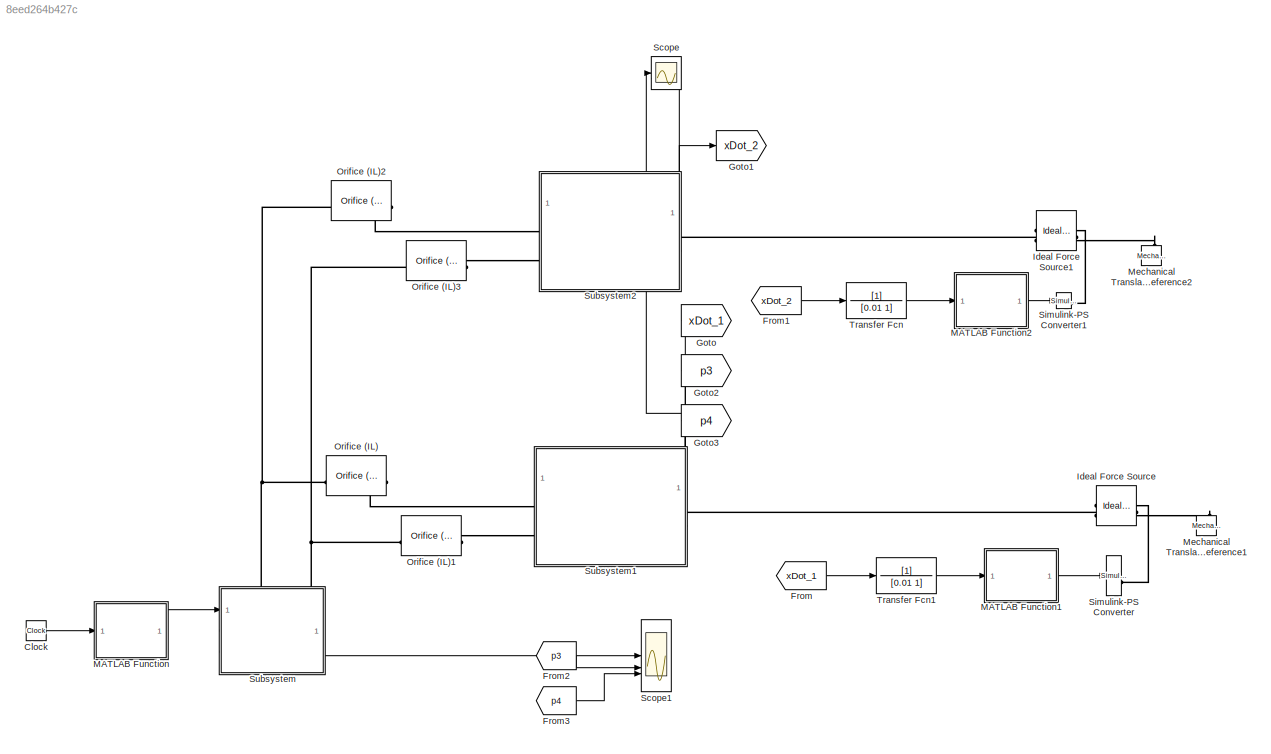
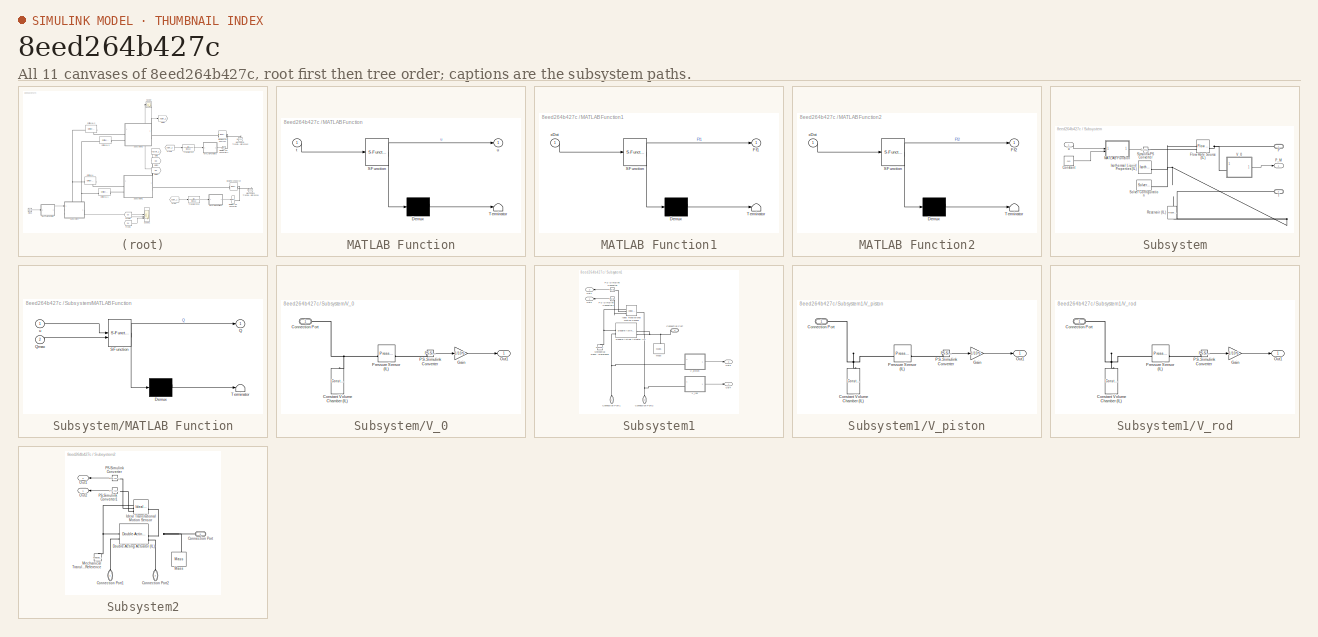
[diagram: thumbnail index - all 11 canvases of the model, root first then tree order]
MODEL slx_8eed264b427c
KIND model
CONFIG AbsTol = auto
CONFIG EnableMultiTasking = off
CONFIG FixedStep = auto
CONFIG MaxStep = auto
CONFIG MinStep = auto
CONFIG RelTol = 1e-3
CONFIG SampleTimeConstraint = Unconstrained
CONFIG SolverName = VariableStepAuto
CONFIG StartTime = 0.0
CONFIG StopTime = 2
WORKSPACE source: MATLAB code (in-file)
WORKSPACE code: clear;
WORKSPACE rho = 875
WORKSPACE beta = 830
WORKSPACE m1 = 3000
WORKSPACE m2 = 5000
WORKSPACE Ff1max = 12000
WORKSPACE Ff2max = 20000
WORKSPACE vf = 0.05
WORKSPACE d = 42
WORKSPACE dr = 30
WORKSPACE A = pi*d^2/4  (= 1385.44236023)
WORKSPACE Ar = pi*dr^2/4  (= 706.858347058)
WORKSPACE Aa = A - Ar  (= 678.584013175)
WORKSPACE L0 = 1600
WORKSPACE x1_Init = 200
WORKSPACE x2_Init = x1_Init  (= 200)
WORKSPACE V0 = 1
WORKSPACE Cd = 0.6
WORKSPACE Ad1 = 9
WORKSPACE Ad2 = 5
WORKSPACE Ad3 = Ad1  (= 9)
WORKSPACE Ad4 = Ad2  (= 5)
WORKSPACE Q0 = 25
WORKSPACE tRamp = 0.25
WORKSPACE tHold = 1
BLOCK [Clock] Clock
BLOCK [From] From
  GotoTag = xDot_1
BLOCK [From] From1
  GotoTag = xDot_2
BLOCK [From] From2
  GotoTag = p3
BLOCK [From] From3
  GotoTag = p4
BLOCK [Goto] Goto
  GotoTag = xDot_1
BLOCK [Goto] Goto1
  GotoTag = xDot_2
BLOCK [Goto] Goto2
  GotoTag = p3
BLOCK [Goto] Goto3
  GotoTag = p4
BLOCK [Reference] Ideal Force Source  REF=fl_lib/Mechanical/Mechanical Sources/Ideal Force Source
  NameLocation = top
  SourceBlock = fl_lib/Mechanical/Mechanical Sources/Ideal Force Source
  SourceType = Ideal Force Source
BLOCK [Reference] Ideal Force Source1  REF=fl_lib/Mechanical/Mechanical Sources/Ideal Force Source
  NameLocation = top
  SourceBlock = fl_lib/Mechanical/Mechanical Sources/Ideal Force Source
  SourceType = Ideal Force Source
BLOCK [SubSystem] MATLAB Function
  ErrorFcn = Stateflow.Translate.translate
  LibrarySourceBlock = simulink/User-Defined\nFunctions/MATLAB Function
  PermitHierarchicalResolution = ExplicitOnly
  SFBlockType = MATLAB Function
  TreatAsAtomicUnit = on
BLOCK [Demux] MATLAB Function/ Demux 
  Outputs = 1
BLOCK [S-Function] MATLAB Function/ SFunction 
  EnableBusSupport = on
  FunctionName = sf_sfun
  Parameters = tHold,tRamp
  PortCounts = [1 2]
  SFcnIsStateOwnerBlock = off
  SFunctionDeploymentMode = off
  Tag = Stateflow S-Function 2
BLOCK [Terminator] MATLAB Function/ Terminator 
BLOCK [Inport] MATLAB Function/t
BLOCK [Outport] MATLAB Function/u
BLOCK [SubSystem] MATLAB Function1
  ErrorFcn = Stateflow.Translate.translate
  LibrarySourceBlock = simulink/User-Defined\nFunctions/MATLAB Function
  PermitHierarchicalResolution = ExplicitOnly
  SFBlockType = MATLAB Function
  TreatAsAtomicUnit = on
BLOCK [Demux] MATLAB Function1/ Demux 
  Outputs = 1
BLOCK [S-Function] MATLAB Function1/ SFunction 
  EnableBusSupport = on
  FunctionName = sf_sfun
  Parameters = Ff1max,vf
  PortCounts = [1 2]
  SFcnIsStateOwnerBlock = off
  SFunctionDeploymentMode = off
  Tag = Stateflow S-Function 1
BLOCK [Terminator] MATLAB Function1/ Terminator 
BLOCK [Outport] MATLAB Function1/Ff1
BLOCK [Inport] MATLAB Function1/xDot
BLOCK [SubSystem] MATLAB Function2
  ErrorFcn = Stateflow.Translate.translate
  LibrarySourceBlock = simulink/User-Defined\nFunctions/MATLAB Function
  PermitHierarchicalResolution = ExplicitOnly
  SFBlockType = MATLAB Function
  TreatAsAtomicUnit = on
BLOCK [Demux] MATLAB Function2/ Demux 
  Outputs = 1
BLOCK [S-Function] MATLAB Function2/ SFunction 
  EnableBusSupport = on
  FunctionName = sf_sfun
  Parameters = Ff2max,vf
  PortCounts = [1 2]
  SFcnIsStateOwnerBlock = off
  SFunctionDeploymentMode = off
  Tag = Stateflow S-Function 4
BLOCK [Terminator] MATLAB Function2/ Terminator 
BLOCK [Outport] MATLAB Function2/Ff2
BLOCK [Inport] MATLAB Function2/xDot
BLOCK [Reference] Mechanical Translational Reference1  REF=fl_lib/Mechanical/Translational
Elements/Mechanical
Translational
Reference
  NameLocation = right
  SourceBlock = fl_lib/Mechanical/Translational\nElements/Mechanical\nTranslational\nReference
  SourceType = Mechanical\nTranslational\nReference
BLOCK [Reference] Mechanical Translational Reference2  REF=fl_lib/Mechanical/Translational
Elements/Mechanical
Translational
Reference
  NameLocation = right
  SourceBlock = fl_lib/Mechanical/Translational\nElements/Mechanical\nTranslational\nReference
  SourceType = Mechanical\nTranslational\nReference
BLOCK [Reference] Orifice (IL)  REF=SimscapeFluids_lib/Isothermal Liquid/Valves & Orifices/Orifices/Orifice (IL)
  SourceBlock = SimscapeFluids_lib/Isothermal Liquid/Valves & Orifices/Orifices/Orifice (IL)
  SourceType = Orifice (IL)
BLOCK [Reference] Orifice (IL)1  REF=SimscapeFluids_lib/Isothermal Liquid/Valves & Orifices/Orifices/Orifice (IL)
  SourceBlock = SimscapeFluids_lib/Isothermal Liquid/Valves & Orifices/Orifices/Orifice (IL)
  SourceType = Orifice (IL)
BLOCK [Reference] Orifice (IL)2  REF=SimscapeFluids_lib/Isothermal Liquid/Valves & Orifices/Orifices/Orifice (IL)
  SourceBlock = SimscapeFluids_lib/Isothermal Liquid/Valves & Orifices/Orifices/Orifice (IL)
  SourceType = Orifice (IL)
BLOCK [Reference] Orifice (IL)3  REF=SimscapeFluids_lib/Isothermal Liquid/Valves & Orifices/Orifices/Orifice (IL)
  SourceBlock = SimscapeFluids_lib/Isothermal Liquid/Valves & Orifices/Orifices/Orifice (IL)
  SourceType = Orifice (IL)
BLOCK [Scope] Scope
  Floating = off
  NumInputPorts = 2
  ScopeSpecificationString = Simulink.scopes.TimeScopeBlockCfg('CurrentConfiguration', extmgr.ConfigurationSet(extmgr.Configuration('Core','General UI',true),extmgr.Configuration('Core','Source UI',true),extmgr.Configuration('Sources','WiredSimulink',true),extmgr.Configuration('Visuals','Time Domain',true,'SerializedDisplays',{struct('MinYLimReal','0.16011','MaxYLimReal','0.55903','YLabelReal','','MinYLimMag','0.16011','MaxYL...<+1635ch>
BLOCK [Scope] Scope1
  Floating = off
  NumInputPorts = 3
  ScopeSpecificationString = Simulink.scopes.TimeScopeBlockCfg('CurrentConfiguration', extmgr.ConfigurationSet(extmgr.Configuration('Core','General UI',true),extmgr.Configuration('Core','Source UI',true),extmgr.Configuration('Sources','WiredSimulink',true,'DataLoggingVariableName','ScopeData1'),extmgr.Configuration('Visuals','Time Domain',true,'SerializedDisplays',{struct('MinYLimReal','-20.80978','MaxYLimReal','187.28803','Y...<+1837ch>
BLOCK [Reference] Simulink-PS Converter  REF=nesl_utility/Simulink-PS
Converter
  NameLocation = top
  SourceBlock = nesl_utility/Simulink-PS\nConverter
  SourceType = Simulink-PS\nConverter
BLOCK [Reference] Simulink-PS Converter1  REF=nesl_utility/Simulink-PS
Converter
  NameLocation = top
  SourceBlock = nesl_utility/Simulink-PS\nConverter
  SourceType = Simulink-PS\nConverter
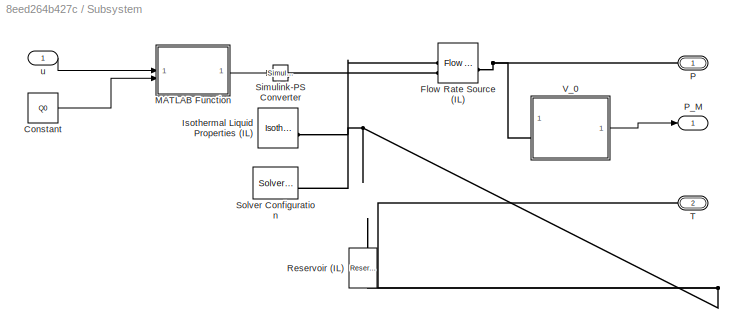
BLOCK [SubSystem] Subsystem
  PortSchema = {"entries":[{"content":{"sides":[{"content":{"connectorIds":["In1"]},"type":"ConnectorPlacement.EquallySpacedRectSide","uuid":"074b696c-c208-4407-b67b-8d54c3be0c3b"},{"content":{"connectorIds":["Out1"],"side":"RIGHT"},"type":"ConnectorPlacement.EquallySpacedRectSide","uuid":"6280edc9-086d-491c-89a7-9b9ec6eba0fd"},{"content":{"connectorIds":["LConn1","LConn2"],"side":"TOP"},"type":"ConnectorPlaceme...<+257ch>
BLOCK [Constant] Subsystem/Constant
  Value = Q0
BLOCK [Reference] Subsystem/Flow Rate Source (IL)  REF=fl_lib/Isothermal Liquid/Sources/Flow Rate Source
(IL)
  SourceBlock = fl_lib/Isothermal Liquid/Sources/Flow Rate Source\n(IL)
  SourceType = Flow Rate Source\n(IL)
BLOCK [Reference] Subsystem/Isothermal Liquid Properties (IL)  REF=fl_lib/Isothermal Liquid/Utilities/Isothermal Liquid
Properties (IL)
  SourceBlock = fl_lib/Isothermal Liquid/Utilities/Isothermal Liquid\nProperties (IL)
  SourceType = Isothermal Liquid\nProperties (IL)
BLOCK [SubSystem] Subsystem/MATLAB Function
  ErrorFcn = Stateflow.Translate.translate
  LibrarySourceBlock = simulink/User-Defined\nFunctions/MATLAB Function
  PermitHierarchicalResolution = ExplicitOnly
  SFBlockType = MATLAB Function
  TreatAsAtomicUnit = on
BLOCK [Demux] Subsystem/MATLAB Function/ Demux 
  Outputs = 1
BLOCK [S-Function] Subsystem/MATLAB Function/ SFunction 
  EnableBusSupport = on
  FunctionName = sf_sfun
  PortCounts = [2 2]
  SFcnIsStateOwnerBlock = off
  SFunctionDeploymentMode = off
  Tag = Stateflow S-Function 3
BLOCK [Terminator] Subsystem/MATLAB Function/ Terminator 
BLOCK [Outport] Subsystem/MATLAB Function/Q
BLOCK [Inport] Subsystem/MATLAB Function/Qmax
  Port = 2
BLOCK [Inport] Subsystem/MATLAB Function/u
BLOCK [PMIOPort] Subsystem/P
  Side = Left
BLOCK [Outport] Subsystem/P_M
BLOCK [Reference] Subsystem/Reservoir (IL)  REF=fl_lib/Isothermal Liquid/Elements/Reservoir (IL)
  NameLocation = right
  SourceBlock = fl_lib/Isothermal Liquid/Elements/Reservoir (IL)
  SourceType = Reservoir (IL)
BLOCK [Reference] Subsystem/Simulink-PS Converter  REF=nesl_utility/Simulink-PS
Converter
  SourceBlock = nesl_utility/Simulink-PS\nConverter
  SourceType = Simulink-PS\nConverter
BLOCK [Reference] Subsystem/Solver Configuration  REF=nesl_utility/Solver
Configuration
  SourceBlock = nesl_utility/Solver\nConfiguration
  SourceType = Solver\nConfiguration
BLOCK [PMIOPort] Subsystem/T
  Port = 2
  Side = Left
BLOCK [SubSystem] Subsystem/V_0
BLOCK [PMIOPort] Subsystem/V_0/Connection Port
  Side = Left
BLOCK [Reference] Subsystem/V_0/Constant Volume Chamber (IL)  REF=fl_lib/Isothermal Liquid/Elements/Constant Volume
Chamber (IL)
  NameLocation = right
  SourceBlock = fl_lib/Isothermal Liquid/Elements/Constant Volume\nChamber (IL)
  SourceType = Constant Volume\nChamber (IL)
BLOCK [Gain] Subsystem/V_0/Gain
  Gain = 1/10^5
BLOCK [Outport] Subsystem/V_0/Out1
BLOCK [Reference] Subsystem/V_0/PS-Simulink Converter  REF=nesl_utility/PS-Simulink
Converter
  SourceBlock = nesl_utility/PS-Simulink\nConverter
  SourceType = PS-Simulink\nConverter
BLOCK [Reference] Subsystem/V_0/Pressure Sensor (IL)  REF=fl_lib/Isothermal Liquid/Sensors/Pressure Sensor (IL)
  SourceBlock = fl_lib/Isothermal Liquid/Sensors/Pressure Sensor (IL)
  SourceType = Pressure Sensor (IL)
BLOCK [Inport] Subsystem/u
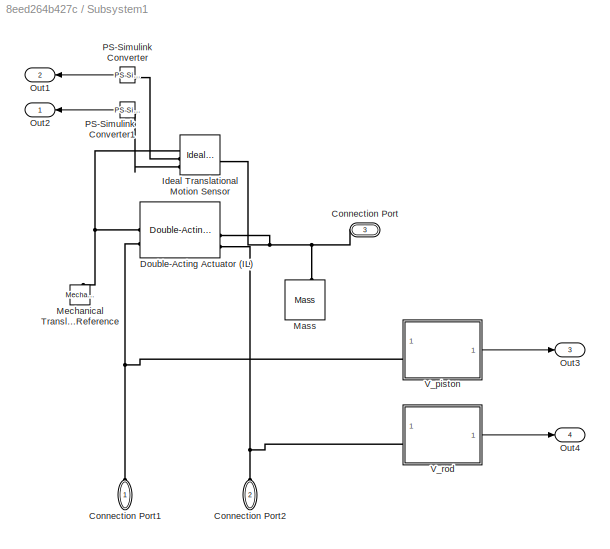
BLOCK [SubSystem] Subsystem1
  PortSchema = {"entries":[{"content":{"sides":[{"content":{"connectorIds":["LConn1","LConn2"]},"type":"ConnectorPlacement.EquallySpacedRectSide","uuid":"d197ad62-f4bc-4cfc-a8fc-5a93d5082237"},{"content":{"connectorIds":["RConn1"],"side":"RIGHT"},"type":"ConnectorPlacement.EquallySpacedRectSide","uuid":"bac5b2ff-1850-4710-8966-ec3c240ddd99"},{"content":{"connectorIds":["Out1","Out2","Out3","Out4"],"side":"TOP"},...<+281ch>
BLOCK [PMIOPort] Subsystem1/Connection Port
  Port = 3
  Side = Right
BLOCK [PMIOPort] Subsystem1/Connection Port1
  NameLocation = left
  Side = Left
BLOCK [PMIOPort] Subsystem1/Connection Port2
  NameLocation = left
  Port = 2
  Side = Left
BLOCK [Reference] Subsystem1/Double-Acting Actuator (IL)  REF=SimscapeFluids_lib/Isothermal Liquid/Actuators/Double-Acting
Actuator (IL)
  SourceBlock = SimscapeFluids_lib/Isothermal Liquid/Actuators/Double-Acting\nActuator (IL)
  SourceType = Double-Acting\nActuator (IL)
BLOCK [Reference] Subsystem1/Ideal Translational Motion Sensor  REF=fl_lib/Mechanical/Mechanical Sensors/Ideal Translational
Motion Sensor
  SourceBlock = fl_lib/Mechanical/Mechanical Sensors/Ideal Translational\nMotion Sensor
  SourceType = Ideal Translational\nMotion Sensor
BLOCK [Reference] Subsystem1/Mass  REF=fl_lib/Mechanical/Translational
Elements/Mass
  NameLocation = right
  SourceBlock = fl_lib/Mechanical/Translational\nElements/Mass
  SourceType = Mass
BLOCK [Reference] Subsystem1/Mechanical Translational Reference  REF=fl_lib/Mechanical/Translational
Elements/Mechanical
Translational
Reference
  NameLocation = right
  SourceBlock = fl_lib/Mechanical/Translational\nElements/Mechanical\nTranslational\nReference
  SourceType = Mechanical\nTranslational\nReference
BLOCK [Outport] Subsystem1/Out1
  Port = 2
BLOCK [Outport] Subsystem1/Out2
BLOCK [Outport] Subsystem1/Out3
  Port = 3
BLOCK [Outport] Subsystem1/Out4
  Port = 4
BLOCK [Reference] Subsystem1/PS-Simulink Converter  REF=nesl_utility/PS-Simulink
Converter
  SourceBlock = nesl_utility/PS-Simulink\nConverter
  SourceType = PS-Simulink\nConverter
BLOCK [Reference] Subsystem1/PS-Simulink Converter1  REF=nesl_utility/PS-Simulink
Converter
  SourceBlock = nesl_utility/PS-Simulink\nConverter
  SourceType = PS-Simulink\nConverter
BLOCK [SubSystem] Subsystem1/V_piston
BLOCK [PMIOPort] Subsystem1/V_piston/Connection Port
  Side = Left
BLOCK [Reference] Subsystem1/V_piston/Constant Volume Chamber (IL)  REF=fl_lib/Isothermal Liquid/Elements/Constant Volume
Chamber (IL)
  NameLocation = right
  SourceBlock = fl_lib/Isothermal Liquid/Elements/Constant Volume\nChamber (IL)
  SourceType = Constant Volume\nChamber (IL)
BLOCK [Gain] Subsystem1/V_piston/Gain
  Gain = 1/10^5
BLOCK [Outport] Subsystem1/V_piston/Out1
BLOCK [Reference] Subsystem1/V_piston/PS-Simulink Converter  REF=nesl_utility/PS-Simulink
Converter
  SourceBlock = nesl_utility/PS-Simulink\nConverter
  SourceType = PS-Simulink\nConverter
BLOCK [Reference] Subsystem1/V_piston/Pressure Sensor (IL)  REF=fl_lib/Isothermal Liquid/Sensors/Pressure Sensor (IL)
  SourceBlock = fl_lib/Isothermal Liquid/Sensors/Pressure Sensor (IL)
  SourceType = Pressure Sensor (IL)
BLOCK [SubSystem] Subsystem1/V_rod
BLOCK [PMIOPort] Subsystem1/V_rod/Connection Port
  Side = Left
BLOCK [Reference] Subsystem1/V_rod/Constant Volume Chamber (IL)  REF=fl_lib/Isothermal Liquid/Elements/Constant Volume
Chamber (IL)
  NameLocation = right
  SourceBlock = fl_lib/Isothermal Liquid/Elements/Constant Volume\nChamber (IL)
  SourceType = Constant Volume\nChamber (IL)
BLOCK [Gain] Subsystem1/V_rod/Gain
  Gain = 1/10^5
BLOCK [Outport] Subsystem1/V_rod/Out1
BLOCK [Reference] Subsystem1/V_rod/PS-Simulink Converter  REF=nesl_utility/PS-Simulink
Converter
  SourceBlock = nesl_utility/PS-Simulink\nConverter
  SourceType = PS-Simulink\nConverter
BLOCK [Reference] Subsystem1/V_rod/Pressure Sensor (IL)  REF=fl_lib/Isothermal Liquid/Sensors/Pressure Sensor (IL)
  SourceBlock = fl_lib/Isothermal Liquid/Sensors/Pressure Sensor (IL)
  SourceType = Pressure Sensor (IL)
BLOCK [SubSystem] Subsystem2
  PortSchema = {"entries":[{"content":{"sides":[{"content":{"connectorIds":["LConn1","LConn2"]},"type":"ConnectorPlacement.EquallySpacedRectSide","uuid":"d197ad62-f4bc-4cfc-a8fc-5a93d5082237"},{"content":{"connectorIds":["RConn1"],"side":"RIGHT"},"type":"ConnectorPlacement.EquallySpacedRectSide","uuid":"bac5b2ff-1850-4710-8966-ec3c240ddd99"},{"content":{"connectorIds":["Out1","Out2"],"side":"TOP"},"type":"Connec...<+267ch>
BLOCK [PMIOPort] Subsystem2/Connection Port
  Port = 3
  Side = Right
BLOCK [PMIOPort] Subsystem2/Connection Port1
  NameLocation = left
  Side = Left
BLOCK [PMIOPort] Subsystem2/Connection Port2
  NameLocation = left
  Port = 2
  Side = Left
BLOCK [Reference] Subsystem2/Double-Acting Actuator (IL)  REF=SimscapeFluids_lib/Isothermal Liquid/Actuators/Double-Acting
Actuator (IL)
  SourceBlock = SimscapeFluids_lib/Isothermal Liquid/Actuators/Double-Acting\nActuator (IL)
  SourceType = Double-Acting\nActuator (IL)
BLOCK [Reference] Subsystem2/Ideal Translational Motion Sensor  REF=fl_lib/Mechanical/Mechanical Sensors/Ideal Translational
Motion Sensor
  SourceBlock = fl_lib/Mechanical/Mechanical Sensors/Ideal Translational\nMotion Sensor
  SourceType = Ideal Translational\nMotion Sensor
BLOCK [Reference] Subsystem2/Mass  REF=fl_lib/Mechanical/Translational
Elements/Mass
  NameLocation = right
  SourceBlock = fl_lib/Mechanical/Translational\nElements/Mass
  SourceType = Mass
BLOCK [Reference] Subsystem2/Mechanical Translational Reference  REF=fl_lib/Mechanical/Translational
Elements/Mechanical
Translational
Reference
  NameLocation = right
  SourceBlock = fl_lib/Mechanical/Translational\nElements/Mechanical\nTranslational\nReference
  SourceType = Mechanical\nTranslational\nReference
BLOCK [Outport] Subsystem2/Out1
  Port = 2
BLOCK [Outport] Subsystem2/Out2
BLOCK [Reference] Subsystem2/PS-Simulink Converter  REF=nesl_utility/PS-Simulink
Converter
  SourceBlock = nesl_utility/PS-Simulink\nConverter
  SourceType = PS-Simulink\nConverter
BLOCK [Reference] Subsystem2/PS-Simulink Converter1  REF=nesl_utility/PS-Simulink
Converter
  SourceBlock = nesl_utility/PS-Simulink\nConverter
  SourceType = PS-Simulink\nConverter
BLOCK [TransferFcn] Transfer Fcn
  Denominator = [0.01 1]
BLOCK [TransferFcn] Transfer Fcn1
  Denominator = [0.01 1]
LINE Clock:1 -> MATLAB Function:1
LINE From1:1 -> Transfer Fcn:1
LINE From2:1 -> Scope1:2
LINE From3:1 -> Scope1:3
LINE From:1 -> Transfer Fcn1:1
LINE MATLAB Function1:1 -> Simulink-PS Converter:1
LINE MATLAB Function2:1 -> Simulink-PS Converter1:1
LINE MATLAB Function:1 -> Subsystem:1
LINE Subsystem/Constant:1 -> Subsystem/MATLAB Function:2
LINE Subsystem/MATLAB Function:1 -> Subsystem/Simulink-PS Converter:1
LINE Subsystem/V_0/Gain:1 -> Subsystem/V_0/Out1:1
LINE Subsystem/V_0/PS-Simulink Converter:1 -> Subsystem/V_0/Gain:1
LINE Subsystem/V_0:1 -> Subsystem/P_M:1
LINE Subsystem/u:1 -> Subsystem/MATLAB Function:1
LINE Subsystem1/PS-Simulink Converter1:1 -> Subsystem1/Out2:1
LINE Subsystem1/PS-Simulink Converter:1 -> Subsystem1/Out1:1
LINE Subsystem1/V_piston/Gain:1 -> Subsystem1/V_piston/Out1:1
LINE Subsystem1/V_piston/PS-Simulink Converter:1 -> Subsystem1/V_piston/Gain:1
LINE Subsystem1/V_piston:1 -> Subsystem1/Out3:1
LINE Subsystem1/V_rod/Gain:1 -> Subsystem1/V_rod/Out1:1
LINE Subsystem1/V_rod/PS-Simulink Converter:1 -> Subsystem1/V_rod/Gain:1
LINE Subsystem1/V_rod:1 -> Subsystem1/Out4:1
LINE Subsystem1:1 -> Scope:1
LINE Subsystem1:2 -> Goto:1
LINE Subsystem1:3 -> Goto2:1
LINE Subsystem1:4 -> Goto3:1
LINE Subsystem2/PS-Simulink Converter1:1 -> Subsystem2/Out2:1
LINE Subsystem2/PS-Simulink Converter:1 -> Subsystem2/Out1:1
LINE Subsystem2:1 -> Scope:2
LINE Subsystem2:2 -> Goto1:1
LINE Subsystem:1 -> Scope1:1
LINE Transfer Fcn1:1 -> MATLAB Function1:1
LINE Transfer Fcn:1 -> MATLAB Function2:1
PLINE Ideal Force Source1:LConn1 -- Subsystem2:RConn1
PLINE Ideal Force Source1:RConn1 -- Simulink-PS Converter1:RConn1
PLINE Ideal Force Source1:RConn2 -- Mechanical Translational Reference2:LConn1
PLINE Ideal Force Source:LConn1 -- Subsystem1:RConn1
PLINE Ideal Force Source:RConn1 -- Simulink-PS Converter:RConn1
PLINE Ideal Force Source:RConn2 -- Mechanical Translational Reference1:LConn1
PNET net1: Orifice (IL)1:LConn1 -- Orifice (IL)3:LConn1 -- Subsystem:LConn2
PLINE Orifice (IL)1:RConn1 -- Subsystem1:LConn2
PNET net2: Orifice (IL)2:LConn1 -- Orifice (IL):LConn1 -- Subsystem:LConn1
PLINE Orifice (IL)2:RConn1 -- Subsystem2:LConn1
PLINE Orifice (IL)3:RConn1 -- Subsystem2:LConn2
PLINE Orifice (IL):RConn1 -- Subsystem1:LConn1
PNET net3: Subsystem/Flow Rate Source (IL):LConn1 -- Subsystem/Isothermal Liquid Properties (IL):RConn1 -- Subsystem/Reservoir (IL):LConn1 -- Subsystem/Solver Configuration:RConn1 -- Subsystem/T:RConn1
PLINE Subsystem/Flow Rate Source (IL):LConn2 -- Subsystem/Simulink-PS Converter:RConn1
PNET net4: Subsystem/Flow Rate Source (IL):RConn1 -- Subsystem/P:RConn1 -- Subsystem/V_0:LConn1
PNET net5: Subsystem/V_0/Connection Port:RConn1 -- Subsystem/V_0/Constant Volume Chamber (IL):LConn1 -- Subsystem/V_0/Pressure Sensor (IL):LConn1
PLINE Subsystem/V_0/PS-Simulink Converter:LConn1 -- Subsystem/V_0/Pressure Sensor (IL):RConn1
PNET net6: Subsystem1/Connection Port1:RConn1 -- Subsystem1/Double-Acting Actuator (IL):LConn2 -- Subsystem1/V_piston:LConn1
PNET net7: Subsystem1/Connection Port2:RConn1 -- Subsystem1/Double-Acting Actuator (IL):RConn3 -- Subsystem1/V_rod:LConn1
PNET net8: Subsystem1/Connection Port:RConn1 -- Subsystem1/Double-Acting Actuator (IL):RConn2 -- Subsystem1/Ideal Translational Motion Sensor:LConn1 -- Subsystem1/Mass:LConn1
PNET net9: Subsystem1/Double-Acting Actuator (IL):LConn1 -- Subsystem1/Ideal Translational Motion Sensor:RConn1 -- Subsystem1/Mechanical Translational Reference:LConn1
PLINE Subsystem1/Ideal Translational Motion Sensor:RConn2 -- Subsystem1/PS-Simulink Converter:LConn1
PLINE Subsystem1/Ideal Translational Motion Sensor:RConn3 -- Subsystem1/PS-Simulink Converter1:LConn1
PNET net10: Subsystem1/V_piston/Connection Port:RConn1 -- Subsystem1/V_piston/Constant Volume Chamber (IL):LConn1 -- Subsystem1/V_piston/Pressure Sensor (IL):LConn1
PLINE Subsystem1/V_piston/PS-Simulink Converter:LConn1 -- Subsystem1/V_piston/Pressure Sensor (IL):RConn1
PNET net11: Subsystem1/V_rod/Connection Port:RConn1 -- Subsystem1/V_rod/Constant Volume Chamber (IL):LConn1 -- Subsystem1/V_rod/Pressure Sensor (IL):LConn1
PLINE Subsystem1/V_rod/PS-Simulink Converter:LConn1 -- Subsystem1/V_rod/Pressure Sensor (IL):RConn1
PLINE Subsystem2/Connection Port1:RConn1 -- Subsystem2/Double-Acting Actuator (IL):LConn2
PLINE Subsystem2/Connection Port2:RConn1 -- Subsystem2/Double-Acting Actuator (IL):RConn3
PNET net12: Subsystem2/Connection Port:RConn1 -- Subsystem2/Double-Acting Actuator (IL):RConn2 -- Subsystem2/Ideal Translational Motion Sensor:LConn1 -- Subsystem2/Mass:LConn1
PNET net13: Subsystem2/Double-Acting Actuator (IL):LConn1 -- Subsystem2/Ideal Translational Motion Sensor:RConn1 -- Subsystem2/Mechanical Translational Reference:LConn1
PLINE Subsystem2/Ideal Translational Motion Sensor:RConn2 -- Subsystem2/PS-Simulink Converter:LConn1
PLINE Subsystem2/Ideal Translational Motion Sensor:RConn3 -- Subsystem2/PS-Simulink Converter1:LConn1
note: PNET lines group multi-terminal physical nets as a canonical sorted terminal list (undirected conserving connections); 2-terminal nets keep the pairwise PLINE form
CHART MATLAB Function1 states=1 transitions=1
  STATE_LABEL 'eML_blk_kernel()'
  STATE_LABEL 'SCRIPT:\nfunction Ff1 = fcn(xDot, Ff1max, vf)\nif xDot < -vf\n    Ff1 = Ff1max;\nelseif xDot < vf\n    Ff1 = -xDot/vf*Ff1max;\nelse\n    Ff1 = -Ff1max;\nend\n'
CHART MATLAB Function states=1 transitions=1
  STATE_LABEL 'eML_blk_kernel()'
  STATE_LABEL 'SCRIPT:\nfunction u = fcn(t, tRamp, tHold)\nif t < tRamp\n    u = t/tRamp;\nelseif t < tRamp + tHold\n    u = 1;\nelseif t < 2*tRamp + tHold\n    tm = t - (tRamp + tHold);\n    u = 1 - tm/tRamp;\nelse\n    u = 0;\nend\n'
CHART Subsystem/MATLAB Function states=1 transitions=1
  STATE_LABEL 'eML_blk_kernel()'
  STATE_LABEL 'SCRIPT:\nfunction Q = fcn(u,Qmax)\n\nQ = u*Qmax/6e4;\n'
CHART MATLAB Function2 states=1 transitions=1
  STATE_LABEL 'eML_blk_kernel()'
  STATE_LABEL 'SCRIPT:\nfunction Ff2 = fcn(xDot, Ff2max, vf)\nif xDot < -vf\n    Ff2 = Ff2max;\nelseif xDot < vf\n    Ff2 = -xDot/vf*Ff2max;\nelse\n    Ff2 = -Ff2max;\nend\n'
CHART  states=0 transitions=0
CHART  states=0 transitions=0
CHART  states=0 transitions=0
CHART  states=0 transitions=0
